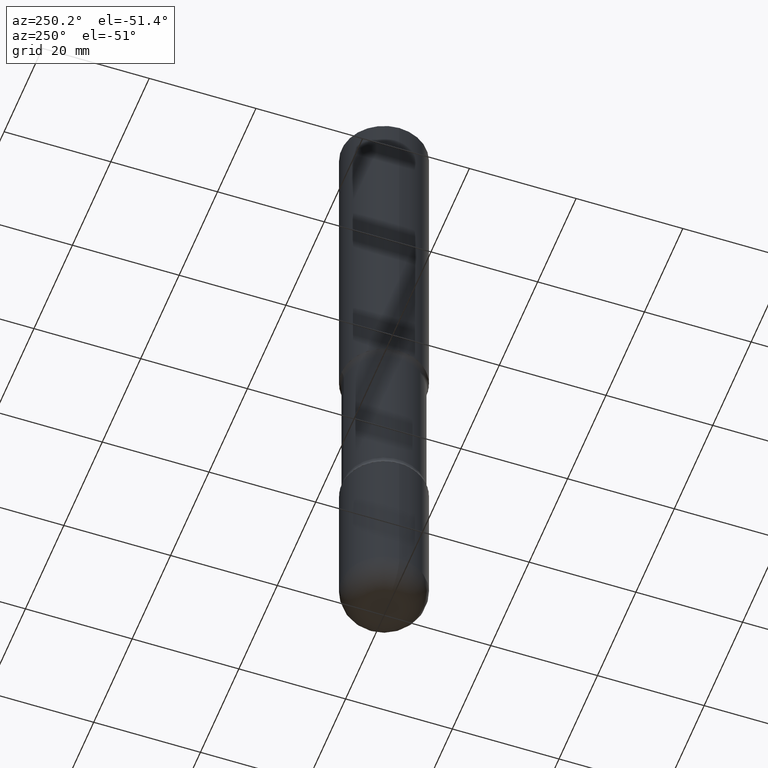
[diagram: clean part render]
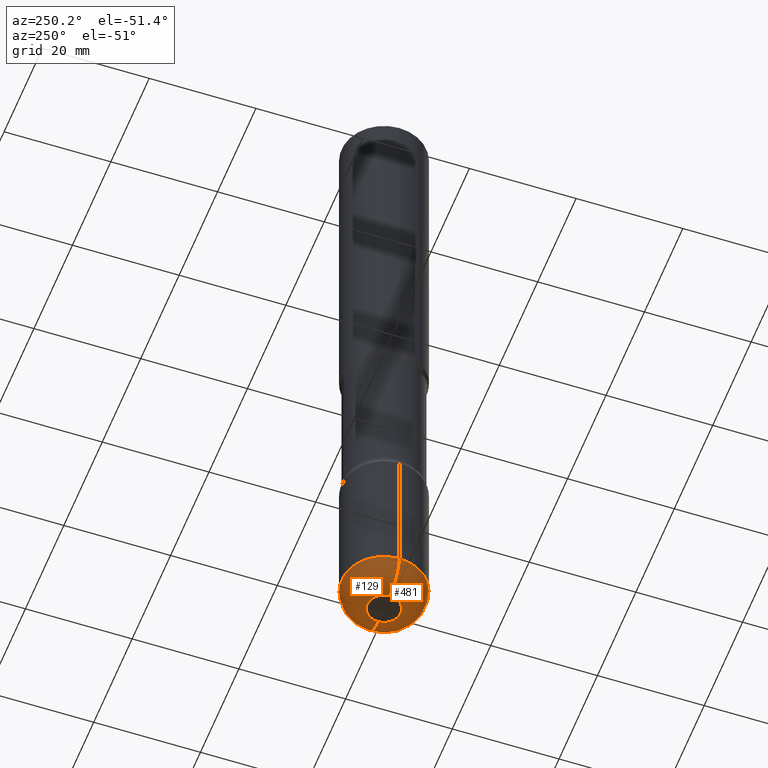
[diagram: same view with one multi-face feature highlighted, each face labeled with its STEP entity id]
A machine part, auxiliary view. The highlighted faces form ONE feature: a constant-radius fillet chain: 2 tangent blend faces with common blend radius 4.826 mm. The faces share edges in the B-rep.
Their STEP definitions:
[1] entity #481 (Torus):
#3 = CARTESIAN_POINT ( 'NONE',  ( 0.1225000000000003308, -1.831281962223229977E-14, -5.000000000000000000 ) ) ;
#31 = EDGE_CURVE ( 'NONE', #423, #374, #40, .T. ) ;
#40 = CIRCLE ( 'NONE', #169, 0.1899999999999998634 ) ;
#87 = DIRECTION ( 'NONE',  ( 1.000000000000000000, -6.982962677686266711E-15, 0.000000000000000000 ) ) ;
#112 = ORIENTED_EDGE ( 'NONE', *, *, #417, .F. ) ;
#121 = DIRECTION ( 'NONE',  ( -1.000000000000000000, 7.105427357601003436E-15, 0.000000000000000000 ) ) ;
#139 = DIRECTION ( 'NONE',  ( 1.000000000000000000, -6.982962677686262766E-15, 0.000000000000000000 ) ) ;
#147 = TOROIDAL_SURFACE ( 'NONE', #357, 0.1225000000000003031, 0.1899999999999998912 ) ;
#154 = CIRCLE ( 'NONE', #334, 0.1225000000000003308 ) ;
#158 = ORIENTED_EDGE ( 'NONE', *, *, #519, .F. ) ;
#159 = DIRECTION ( 'NONE',  ( 1.000000000000000000, -6.982962677686264344E-15, 0.000000000000000000 ) ) ;
#165 = CARTESIAN_POINT ( 'NONE',  ( 1.176270495775050811E-28, -1.679402523983553013E-14, -4.810000000000000497 ) ) ;
#169 = AXIS2_PLACEMENT_3D ( 'NONE', #435, #486, #87 ) ;
#185 = CARTESIAN_POINT ( 'NONE',  ( -0.1225000000000003308, -1.558028551674741034E-14, -5.000000000000000000 ) ) ;
#191 = EDGE_CURVE ( 'NONE', #556, #423, #154, .T. ) ;
#197 = AXIS2_PLACEMENT_3D ( 'NONE', #465, #200, #121 ) ;
#200 = DIRECTION ( 'NONE',  ( 7.105427357601001859E-15, 1.000000000000000000, -3.491481338843145583E-15 ) ) ;
#210 = CARTESIAN_POINT ( 'NONE',  ( -0.3125000000000001665, -1.457357919058521389E-14, -4.810000000000000497 ) ) ;
#212 = ORIENTED_EDGE ( 'NONE', *, *, #31, .T. ) ;
#231 = EDGE_LOOP ( 'NONE', ( #112, #559, #212, #158 ) ) ;
#278 = CARTESIAN_POINT ( 'NONE',  ( 0.3125000000000001665, -1.897620107661249005E-14, -4.810000000000000497 ) ) ;
#282 = DIRECTION ( 'NONE',  ( -2.445468806185136597E-29, 3.491481338843145583E-15, 1.000000000000000000 ) ) ;
#318 = CIRCLE ( 'NONE', #197, 0.1899999999999998634 ) ;
#334 = AXIS2_PLACEMENT_3D ( 'NONE', #538, #491, #139 ) ;
#341 = FACE_OUTER_BOUND ( 'NONE', #231, .T. ) ;
#357 = AXIS2_PLACEMENT_3D ( 'NONE', #165, #282, #463 ) ;
#374 = VERTEX_POINT ( 'NONE', #278 ) ;
#417 = EDGE_CURVE ( 'NONE', #556, #467, #318, .T. ) ;
#423 = VERTEX_POINT ( 'NONE', #3 ) ;
#435 = CARTESIAN_POINT ( 'NONE',  ( 0.1225000000000003031, -1.764943816785210001E-14, -4.810000000000000497 ) ) ;
#461 = AXIS2_PLACEMENT_3D ( 'NONE', #517, #555, #159 ) ;
#463 = DIRECTION ( 'NONE',  ( 1.000000000000000000, -6.982962677686265922E-15, 4.883557194083112340E-29 ) ) ;
#465 = CARTESIAN_POINT ( 'NONE',  ( -0.1225000000000003031, -1.592361038852940387E-14, -4.810000000000000497 ) ) ;
#467 = VERTEX_POINT ( 'NONE', #210 ) ;
#481 = ADVANCED_FACE ( 'NONE', ( #341 ), #147, .T. ) ;
#486 = DIRECTION ( 'NONE',  ( -6.982962677686266711E-15, -1.000000000000000000, 3.491481338843145583E-15 ) ) ;
#491 = DIRECTION ( 'NONE',  ( -2.445468806185136597E-29, 3.491481338843145583E-15, 1.000000000000000000 ) ) ;
#517 = CARTESIAN_POINT ( 'NONE',  ( 1.176270495775050811E-28, -1.679402523983553013E-14, -4.810000000000000497 ) ) ;
#519 = EDGE_CURVE ( 'NONE', #467, #374, #546, .T. ) ;
#538 = CARTESIAN_POINT ( 'NONE',  ( 1.222734403092568523E-28, -1.745740669421572989E-14, -5.000000000000000000 ) ) ;
#546 = CIRCLE ( 'NONE', #461, 0.3125000000000002220 ) ;
#555 = DIRECTION ( 'NONE',  ( -2.445468806185136597E-29, 3.491481338843145583E-15, 1.000000000000000000 ) ) ;
#556 = VERTEX_POINT ( 'NONE', #185 ) ;
#559 = ORIENTED_EDGE ( 'NONE', *, *, #191, .T. ) ;
[2] entity #129 (Torus):
#3 = CARTESIAN_POINT ( 'NONE',  ( 0.1225000000000003308, -1.831281962223229977E-14, -5.000000000000000000 ) ) ;
#23 = EDGE_CURVE ( 'NONE', #423, #556, #99, .T. ) ;
#31 = EDGE_CURVE ( 'NONE', #423, #374, #40, .T. ) ;
#40 = CIRCLE ( 'NONE', #169, 0.1899999999999998634 ) ;
#51 = DIRECTION ( 'NONE',  ( -2.445468806185136597E-29, 3.491481338843145583E-15, 1.000000000000000000 ) ) ;
#56 = DIRECTION ( 'NONE',  ( 1.000000000000000000, -6.982962677686265922E-15, 4.883557194083112340E-29 ) ) ;
#87 = DIRECTION ( 'NONE',  ( 1.000000000000000000, -6.982962677686266711E-15, 0.000000000000000000 ) ) ;
#99 = CIRCLE ( 'NONE', #454, 0.1225000000000003308 ) ;
#120 = ORIENTED_EDGE ( 'NONE', *, *, #23, .T. ) ;
#121 = DIRECTION ( 'NONE',  ( -1.000000000000000000, 7.105427357601003436E-15, 0.000000000000000000 ) ) ;
#129 = ADVANCED_FACE ( 'NONE', ( #219 ), #438, .T. ) ;
#141 = CARTESIAN_POINT ( 'NONE',  ( 1.176270495775050811E-28, -1.679402523983553013E-14, -4.810000000000000497 ) ) ;
#149 = EDGE_LOOP ( 'NONE', ( #120, #150, #233, #382 ) ) ;
#150 = ORIENTED_EDGE ( 'NONE', *, *, #417, .T. ) ;
#151 = EDGE_CURVE ( 'NONE', #374, #467, #227, .T. ) ;
#169 = AXIS2_PLACEMENT_3D ( 'NONE', #435, #486, #87 ) ;
#180 = DIRECTION ( 'NONE',  ( 1.000000000000000000, -6.982962677686264344E-15, 0.000000000000000000 ) ) ;
#185 = CARTESIAN_POINT ( 'NONE',  ( -0.1225000000000003308, -1.558028551674741034E-14, -5.000000000000000000 ) ) ;
#197 = AXIS2_PLACEMENT_3D ( 'NONE', #465, #200, #121 ) ;
#200 = DIRECTION ( 'NONE',  ( 7.105427357601001859E-15, 1.000000000000000000, -3.491481338843145583E-15 ) ) ;
#204 = DIRECTION ( 'NONE',  ( -2.445468806185136597E-29, 3.491481338843145583E-15, 1.000000000000000000 ) ) ;
#210 = CARTESIAN_POINT ( 'NONE',  ( -0.3125000000000001665, -1.457357919058521389E-14, -4.810000000000000497 ) ) ;
#219 = FACE_OUTER_BOUND ( 'NONE', #149, .T. ) ;
#227 = CIRCLE ( 'NONE', #547, 0.3125000000000002220 ) ;
#233 = ORIENTED_EDGE ( 'NONE', *, *, #151, .F. ) ;
#256 = CARTESIAN_POINT ( 'NONE',  ( 1.222734403092568523E-28, -1.745740669421572989E-14, -5.000000000000000000 ) ) ;
#278 = CARTESIAN_POINT ( 'NONE',  ( 0.3125000000000001665, -1.897620107661249005E-14, -4.810000000000000497 ) ) ;
#318 = CIRCLE ( 'NONE', #197, 0.1899999999999998634 ) ;
#328 = AXIS2_PLACEMENT_3D ( 'NONE', #141, #51, #56 ) ;
#342 = DIRECTION ( 'NONE',  ( 1.000000000000000000, -6.982962677686262766E-15, 0.000000000000000000 ) ) ;
#374 = VERTEX_POINT ( 'NONE', #278 ) ;
#382 = ORIENTED_EDGE ( 'NONE', *, *, #31, .F. ) ;
#406 = DIRECTION ( 'NONE',  ( -2.445468806185136597E-29, 3.491481338843145583E-15, 1.000000000000000000 ) ) ;
#410 = CARTESIAN_POINT ( 'NONE',  ( 1.176270495775050811E-28, -1.679402523983553013E-14, -4.810000000000000497 ) ) ;
#417 = EDGE_CURVE ( 'NONE', #556, #467, #318, .T. ) ;
#423 = VERTEX_POINT ( 'NONE', #3 ) ;
#435 = CARTESIAN_POINT ( 'NONE',  ( 0.1225000000000003031, -1.764943816785210001E-14, -4.810000000000000497 ) ) ;
#438 = TOROIDAL_SURFACE ( 'NONE', #328, 0.1225000000000003031, 0.1899999999999998912 ) ;
#454 = AXIS2_PLACEMENT_3D ( 'NONE', #256, #204, #342 ) ;
#465 = CARTESIAN_POINT ( 'NONE',  ( -0.1225000000000003031, -1.592361038852940387E-14, -4.810000000000000497 ) ) ;
#467 = VERTEX_POINT ( 'NONE', #210 ) ;
#486 = DIRECTION ( 'NONE',  ( -6.982962677686266711E-15, -1.000000000000000000, 3.491481338843145583E-15 ) ) ;
#547 = AXIS2_PLACEMENT_3D ( 'NONE', #410, #406, #180 ) ;
#556 = VERTEX_POINT ( 'NONE', #185 ) ;